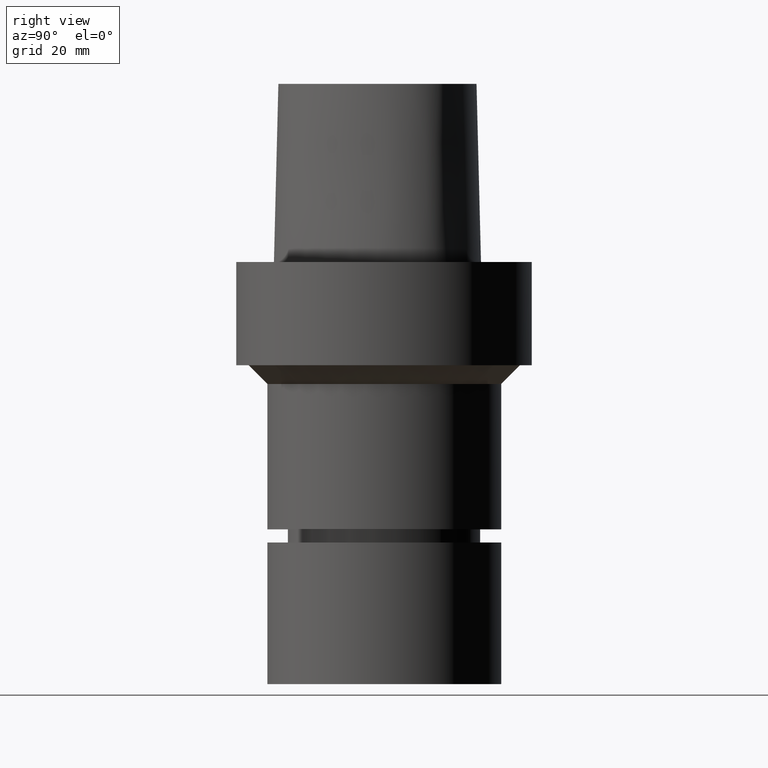
[diagram: clean part render]
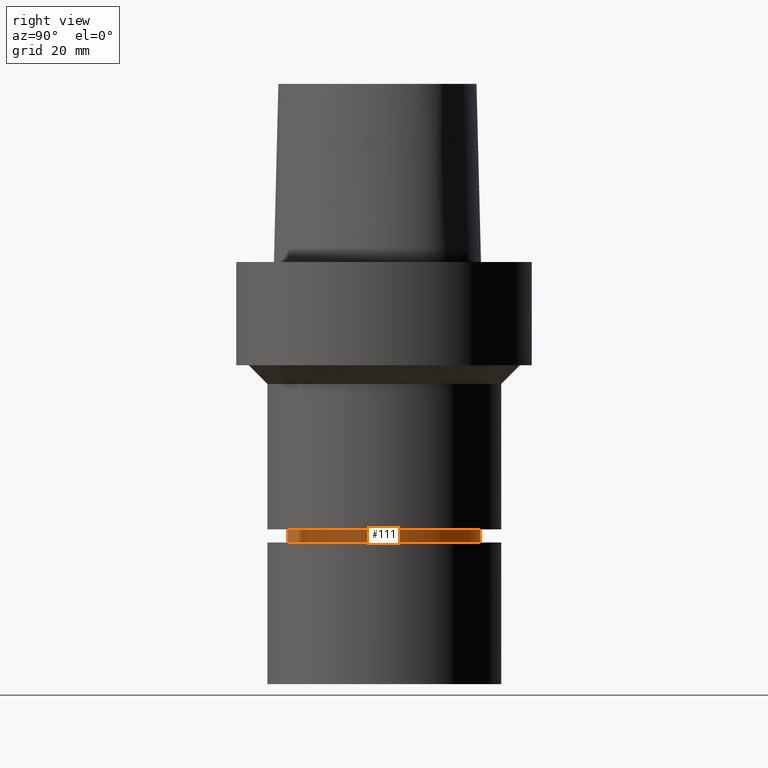
[diagram: same view with one face highlighted and labeled with its STEP entity id]
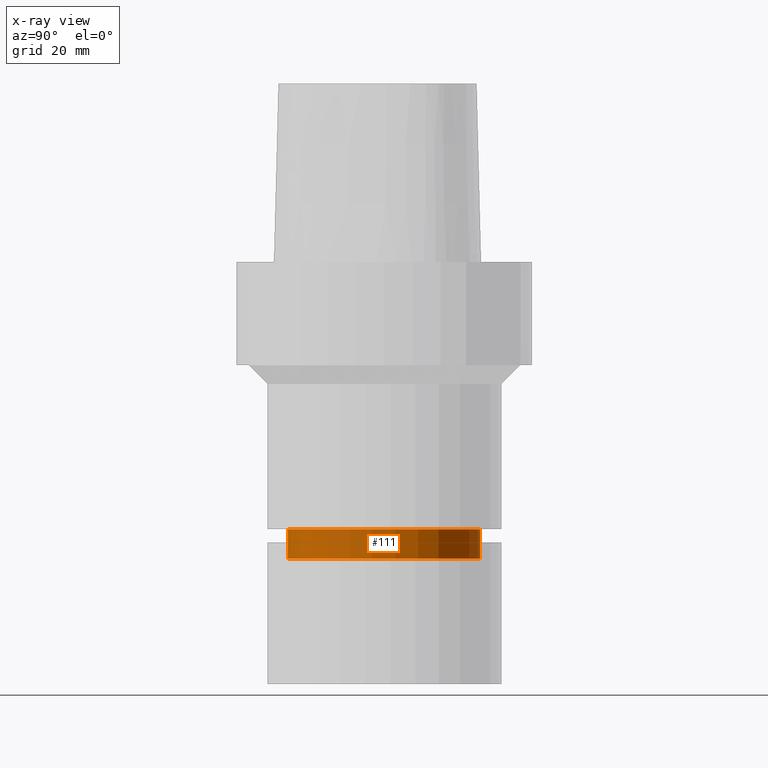
[diagram: x-ray of the same camera — body ghosted, the highlighted face saturated]
A machine part, right view. The second image highlights one B-rep face of the part: STEP entity #111.
The next image is the same camera in x-ray: the body ghosted, the highlighted face saturated — about 0% of this face is hidden behind the body in this view.
In plain terms, the highlighted cylindrical surface (bore or boss wall) has radius 20.5 mm, axis along (0, 0, -1).
Its self-contained STEP definition (entity closure, byte-faithful):
#73=EDGE_CURVE('Unnamed[1]',#192,#192,#193,.T.);
#105=EDGE_CURVE('Unnamed[1]',#243,#243,#244,.T.);
#111=ADVANCED_FACE('Unnamed[1]',(#250,#251),#252,.T.);
#192=VERTEX_POINT('',#350);
#193=CIRCLE('',#351,20.4999999999911);
#243=VERTEX_POINT('',#503);
#244=CIRCLE('',#504,20.5000000000012);
#250=FACE_BOUND('',#511,.T.);
#251=FACE_BOUND('',#512,.T.);
#252=CYLINDRICAL_SURFACE('',#513,20.4999999999961);
#350=CARTESIAN_POINT('',(3.49025302591328E-015,20.4999999999911,-57.0001575694042));
#351=AXIS2_PLACEMENT_3D('',#737,#738,#739);
#503=CARTESIAN_POINT('',(3.87058698165691E-015,20.5000000000012,-63.211482434801));
#504=AXIS2_PLACEMENT_3D('',#785,#786,#787);
#511=EDGE_LOOP('',(#790));
#512=EDGE_LOOP('',(#791));
#513=AXIS2_PLACEMENT_3D('',#792,#793,#794);
#737=CARTESIAN_POINT('',(3.49025302591328E-015,6.98050605182656E-015,-57.0001575694042));
#738=DIRECTION('',(6.12323399573677E-017,1.22464679914735E-016,-1.0));
#739=DIRECTION('',(-1.23259516440783E-032,1.0,1.22464679914735E-016));
#785=CARTESIAN_POINT('',(3.87058698165691E-015,7.74117396331382E-015,-63.211482434801));
#786=DIRECTION('',(6.12323399573677E-017,1.22464679914735E-016,-1.0));
#787=DIRECTION('',(-1.23259516440783E-032,1.0,1.22464679914735E-016));
#790=ORIENTED_EDGE('',*,*,#105,.F.);
#791=ORIENTED_EDGE('',*,*,#73,.T.);
#792=CARTESIAN_POINT('',(3.6804200037851E-015,7.36084000757019E-015,-60.1058200021026));
#793=DIRECTION('',(6.12323399573677E-017,1.22464679914735E-016,-1.0));
#794=DIRECTION('',(-1.23259516440783E-032,1.0,1.22464679914735E-016));